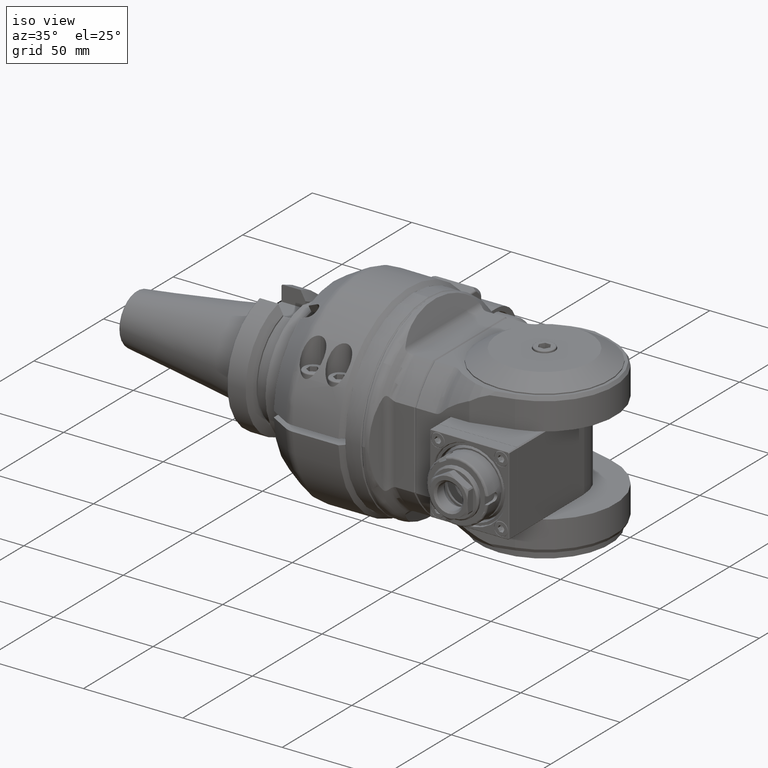
[diagram: clean part render]
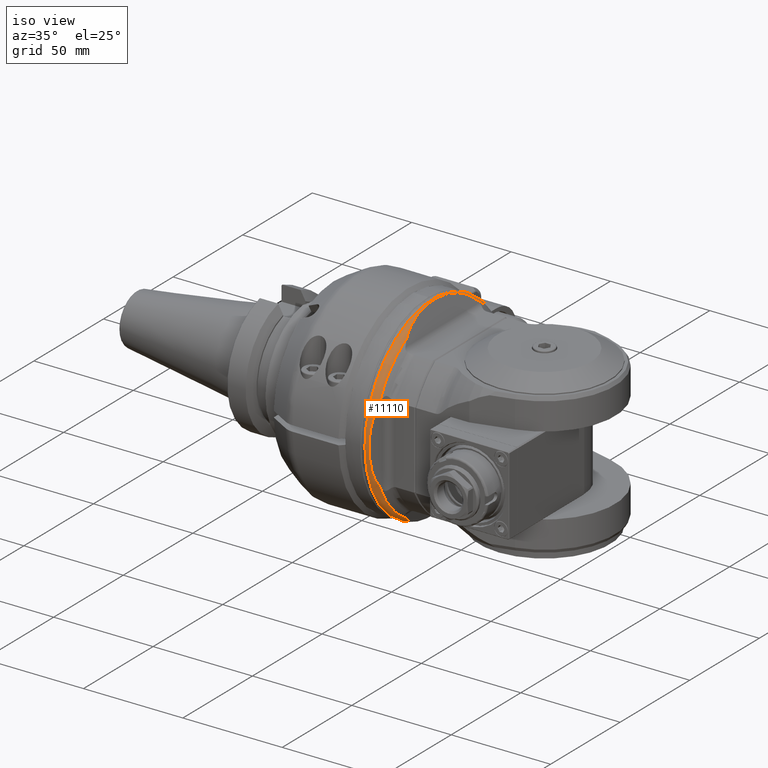
[diagram: same view with one face highlighted and labeled with its STEP entity id]
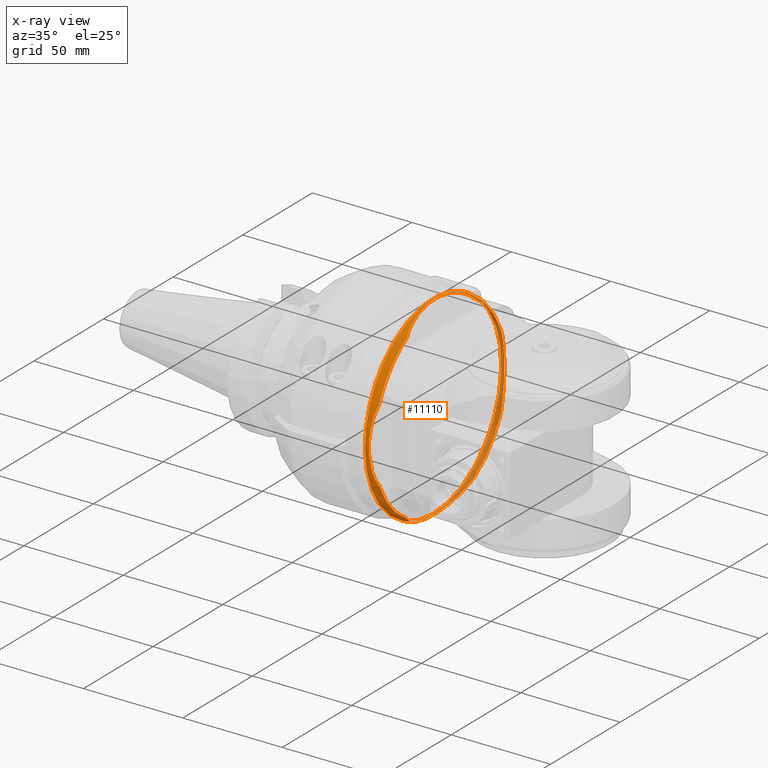
[diagram: x-ray of the same camera — body ghosted, the highlighted face saturated]
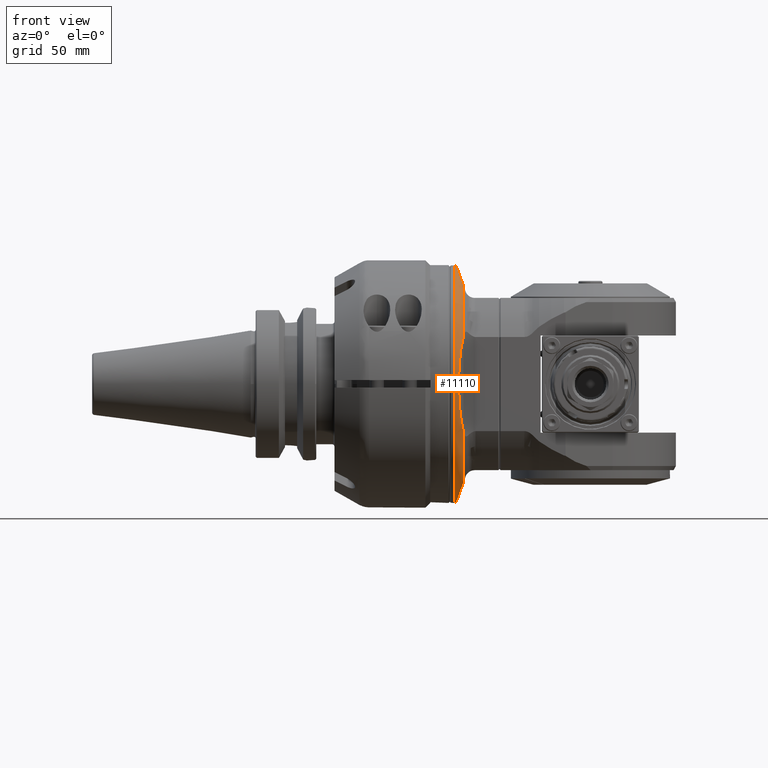
[diagram: same view with one face highlighted and labeled with its STEP entity id]
A machine part, iso view. The second image highlights one B-rep face of the part: STEP entity #11110.
The next image is the same camera in x-ray: the body ghosted, the highlighted face saturated — about 33% of this face is hidden behind the body in this view.
A second angle (front view) of the same face is appended — the face is thin or edge-on in the first view.
In plain terms, the highlighted toroidal blend (fillet) surface has major radius 44 mm and minor (blend) radius 5 mm.
Its self-contained STEP definition (entity closure, byte-faithful):
#236=TOROIDAL_SURFACE('',#11936,44.,5.);
#552=CIRCLE('',#11880,47.53553390593);
#553=CIRCLE('',#11881,47.53553390593);
#572=CIRCLE('',#11933,47.53553390593);
#573=CIRCLE('',#11937,5.);
#574=CIRCLE('',#11938,49.);
#575=CIRCLE('',#11939,49.);
#576=CIRCLE('',#11940,47.53553390593);
#577=CIRCLE('',#11941,47.53553390593);
#1097=FACE_OUTER_BOUND('',#1796,.T.);
#1796=EDGE_LOOP('',(#7753,#7754,#7755,#7756,#7757,#7758,#7759,#7760,#7761,
#7762,#7763,#7764,#7765));
#4108=B_SPLINE_CURVE_WITH_KNOTS('',3,(#17060,#17061,#17062,#17063,#17064,
#17065,#17066,#17067,#17068,#17069,#17070,#17071,#17072,#17073,#17074,#17075,
#17076,#17077,#17078,#17079,#17080,#17081,#17082),.UNSPECIFIED.,.F.,.F.,
(4,2,2,2,2,3,2,2,2,2,4),(-2.43984454532144,-2.00015099254528,-1.74310632766035,
-1.48606166277542,-0.743030831387708,0.,0.743030831387706,1.48606166277541,
1.74310632766034,2.00015099254527,2.43984454532144),.UNSPECIFIED.);
#4109=B_SPLINE_CURVE_WITH_KNOTS('',3,(#17090,#17091,#17092,#17093,#17094,
#17095,#17096,#17097,#17098,#17099,#17100,#17101,#17102,#17103,#17104,#17105,
#17106,#17107,#17108,#17109,#17110,#17111,#17112),.UNSPECIFIED.,.F.,.F.,
(4,2,2,2,2,3,2,2,2,2,4),(6.74242971011523,6.90900004831153,7.11758587013508,
7.32617169195863,7.96213551737785,8.59809934279708,9.2340631682163,9.87002699363553,
10.0786128154591,10.2871986372826,10.4537689754789),.UNSPECIFIED.);
#4110=B_SPLINE_CURVE_WITH_KNOTS('',3,(#17116,#17117,#17118,#17119,#17120,
#17121,#17122,#17123,#17124,#17125,#17126,#17127,#17128,#17129,#17130,#17131,
#17132,#17133,#17134,#17135,#17136,#17137,#17138),.UNSPECIFIED.,.F.,.F.,
(4,2,2,2,2,3,2,2,2,2,4),(8.13167988471684,8.57137343749194,8.82841810237709,
9.08546276726223,9.8284935986504,10.5715244300386,11.3145552614267,12.0575860928149,
12.3146307577001,12.5716754225852,13.0113689753603),.UNSPECIFIED.);
#4111=B_SPLINE_CURVE_WITH_KNOTS('',3,(#17141,#17142,#17143,#17144,#17145,
#17146,#17147,#17148,#17149,#17150,#17151,#17152,#17153,#17154,#17155,#17156,
#17157,#17158,#17159,#17160,#17161,#17162,#17163),.UNSPECIFIED.,.F.,.F.,
(4,2,2,2,2,3,2,2,2,2,4),(6.74242971010642,6.90900004830388,7.1175858701272,
7.32617169195051,7.96213551736924,8.59809934278796,9.23406316820669,9.87002699362542,
10.0786128154487,10.287198637272,10.4537689754695),.UNSPECIFIED.);
#4625=VERTEX_POINT('',#16868);
#4626=VERTEX_POINT('',#16870);
#4627=VERTEX_POINT('',#16872);
#4647=VERTEX_POINT('',#17054);
#4648=VERTEX_POINT('',#17056);
#4649=VERTEX_POINT('',#17084);
#4650=VERTEX_POINT('',#17086);
#4651=VERTEX_POINT('',#17089);
#4652=VERTEX_POINT('',#17113);
#4653=VERTEX_POINT('',#17115);
#4654=VERTEX_POINT('',#17139);
#5803=EDGE_CURVE('',#4626,#4625,#552,.T.);
#5804=EDGE_CURVE('',#4627,#4626,#553,.T.);
#5856=EDGE_CURVE('',#4648,#4647,#572,.T.);
#5858=EDGE_CURVE('',#4648,#4625,#4108,.T.);
#5859=EDGE_CURVE('',#4626,#4649,#573,.T.);
#5860=EDGE_CURVE('',#4649,#4650,#574,.T.);
#5861=EDGE_CURVE('',#4650,#4649,#575,.T.);
#5862=EDGE_CURVE('',#4651,#4647,#4109,.T.);
#5863=EDGE_CURVE('',#4651,#4652,#576,.T.);
#5864=EDGE_CURVE('',#4652,#4653,#4110,.T.);
#5865=EDGE_CURVE('',#4653,#4654,#577,.T.);
#5866=EDGE_CURVE('',#4627,#4654,#4111,.T.);
#7753=ORIENTED_EDGE('',*,*,#5804,.T.);
#7754=ORIENTED_EDGE('',*,*,#5859,.T.);
#7755=ORIENTED_EDGE('',*,*,#5860,.T.);
#7756=ORIENTED_EDGE('',*,*,#5861,.T.);
#7757=ORIENTED_EDGE('',*,*,#5859,.F.);
#7758=ORIENTED_EDGE('',*,*,#5803,.T.);
#7759=ORIENTED_EDGE('',*,*,#5858,.F.);
#7760=ORIENTED_EDGE('',*,*,#5856,.T.);
#7761=ORIENTED_EDGE('',*,*,#5862,.F.);
#7762=ORIENTED_EDGE('',*,*,#5863,.T.);
#7763=ORIENTED_EDGE('',*,*,#5864,.T.);
#7764=ORIENTED_EDGE('',*,*,#5865,.T.);
#7765=ORIENTED_EDGE('',*,*,#5866,.F.);
#11110=ADVANCED_FACE('',(#1097),#236,.T.);
#11880=AXIS2_PLACEMENT_3D('',#16871,#13297,#13298);
#11881=AXIS2_PLACEMENT_3D('',#16873,#13299,#13300);
#11933=AXIS2_PLACEMENT_3D('',#17057,#13417,#13418);
#11936=AXIS2_PLACEMENT_3D('',#17083,#13423,#13424);
#11937=AXIS2_PLACEMENT_3D('',#17085,#13425,#13426);
#11938=AXIS2_PLACEMENT_3D('',#17087,#13427,#13428);
#11939=AXIS2_PLACEMENT_3D('',#17088,#13429,#13430);
#11940=AXIS2_PLACEMENT_3D('',#17114,#13431,#13432);
#11941=AXIS2_PLACEMENT_3D('',#17140,#13433,#13434);
#13297=DIRECTION('center_axis',(-1.,0.,0.));
#13298=DIRECTION('ref_axis',(0.,0.392601429369895,0.919708713483087));
#13299=DIRECTION('center_axis',(-1.,0.,0.));
#13300=DIRECTION('ref_axis',(0.,0.392601429369895,0.919708713483087));
#13417=DIRECTION('center_axis',(-1.,0.,0.));
#13418=DIRECTION('ref_axis',(0.,0.864460332441025,-0.502701038029515));
#13423=DIRECTION('center_axis',(1.,0.,0.));
#13424=DIRECTION('ref_axis',(0.,-0.681998360062485,-0.731353701619183));
#13425=DIRECTION('center_axis',(0.,-0.731353701619184,0.681998360062484));
#13426=DIRECTION('ref_axis',(0.,0.681998360062484,0.731353701619184));
#13427=DIRECTION('center_axis',(1.,0.,0.));
#13428=DIRECTION('ref_axis',(0.,0.681998360062484,0.731353701619183));
#13429=DIRECTION('center_axis',(1.,0.,0.));
#13430=DIRECTION('ref_axis',(0.,0.681998360062484,0.731353701619183));
#13431=DIRECTION('center_axis',(-1.,0.,0.));
#13432=DIRECTION('ref_axis',(0.,-0.392601429369895,-0.919708713483087));
#13433=DIRECTION('center_axis',(-1.,0.,0.));
#13434=DIRECTION('ref_axis',(0.,-0.864460332441025,0.502701038029515));
#16868=CARTESIAN_POINT('',(44.46446609407,41.09258344308,23.8961622378));
#16870=CARTESIAN_POINT('',(44.46446609407,32.4191561685389,34.7652886805461));
#16871=CARTESIAN_POINT('Origin',(44.46446609407,0.,0.));
#16872=CARTESIAN_POINT('',(44.46446609407,18.66251855733,43.71884473336));
#16873=CARTESIAN_POINT('Origin',(44.46446609407,0.,0.));
#17054=CARTESIAN_POINT('',(44.46446609407,18.66251855733,-43.71884473336));
#17056=CARTESIAN_POINT('',(44.46446609407,41.09258344308,-23.8961622378));
#17057=CARTESIAN_POINT('Origin',(44.46446609407,0.,0.));
#17060=CARTESIAN_POINT('Ctrl Pts',(44.4644660940757,41.0925834430739,-23.8961622377918));
#17061=CARTESIAN_POINT('Ctrl Pts',(44.0807184649815,42.1469213887792,-22.8464613976639));
#17062=CARTESIAN_POINT('Ctrl Pts',(43.7262908472899,43.1207032652178,-21.4864127810795));
#17063=CARTESIAN_POINT('Ctrl Pts',(43.2971225944938,44.2998333489219,-19.532112221248));
#17064=CARTESIAN_POINT('Ctrl Pts',(43.1365041596182,44.7411288718907,-18.7160057555082));
#17065=CARTESIAN_POINT('Ctrl Pts',(42.8431706228855,45.5470561404323,-17.0414240138216));
#17066=CARTESIAN_POINT('Ctrl Pts',(42.7102917433149,45.912137861575,-16.1831940298393));
#17067=CARTESIAN_POINT('Ctrl Pts',(42.2776555728236,47.100795970839,-13.0989264161825));
#17068=CARTESIAN_POINT('Ctrl Pts',(42.0161860044596,47.8191777057936,-10.4964622275494));
#17069=CARTESIAN_POINT('Ctrl Pts',(41.6790185905018,48.7455375622186,-5.1853010517597));
#17070=CARTESIAN_POINT('Ctrl Pts',(41.6030160877962,48.9543527222243,-2.47676943795903));
#17071=CARTESIAN_POINT('Ctrl Pts',(41.6030160877962,48.9543527222243,0.));
#17072=CARTESIAN_POINT('Ctrl Pts',(41.6030160877962,48.9543527222243,2.47676943795902));
#17073=CARTESIAN_POINT('Ctrl Pts',(41.6790185905018,48.7455375622186,5.18530105175969));
#17074=CARTESIAN_POINT('Ctrl Pts',(42.0161860044596,47.8191777057936,10.4964622275494));
#17075=CARTESIAN_POINT('Ctrl Pts',(42.2776555728236,47.100795970839,13.0989264161825));
#17076=CARTESIAN_POINT('Ctrl Pts',(42.7102917433149,45.912137861575,16.1831940298393));
#17077=CARTESIAN_POINT('Ctrl Pts',(42.8431706228855,45.5470561404323,17.0414240138216));
#17078=CARTESIAN_POINT('Ctrl Pts',(43.1365041596182,44.7411288718907,18.7160057555082));
#17079=CARTESIAN_POINT('Ctrl Pts',(43.2971225944938,44.2998333489219,19.532112221248));
#17080=CARTESIAN_POINT('Ctrl Pts',(43.7262908472899,43.1207032652178,21.4864127810796));
#17081=CARTESIAN_POINT('Ctrl Pts',(44.0807184649815,42.1469213887792,22.8464613976639));
#17082=CARTESIAN_POINT('Ctrl Pts',(44.4644660940757,41.0925834430739,23.8961622377918));
#17083=CARTESIAN_POINT('Origin',(40.92893218813,0.,0.));
#17084=CARTESIAN_POINT('',(40.92893218813,33.4179196430617,35.83633137934));
#17085=CARTESIAN_POINT('Origin',(40.92893218813,30.0079278427493,32.1795628712441));
#17086=CARTESIAN_POINT('',(40.92893218813,1.06581410364E-14,49.));
#17087=CARTESIAN_POINT('Origin',(40.92893218813,0.,0.));
#17088=CARTESIAN_POINT('Origin',(40.92893218813,0.,0.));
#17089=CARTESIAN_POINT('',(44.46446609407,-18.66251855733,-43.71884473336));
#17090=CARTESIAN_POINT('Ctrl Pts',(44.4644660940687,-18.6625185573252,-43.7188447333527));
#17091=CARTESIAN_POINT('Ctrl Pts',(44.340013542956,-18.1785061137548,-44.0607753073283));
#17092=CARTESIAN_POINT('Ctrl Pts',(44.2266397318306,-17.6765894477361,-44.3722672933529));
#17093=CARTESIAN_POINT('Ctrl Pts',(44.0046423316641,-16.6077112112572,-44.9822001374881));
#17094=CARTESIAN_POINT('Ctrl Pts',(43.8800659119492,-15.9360652240461,-45.3244710376511));
#17095=CARTESIAN_POINT('Ctrl Pts',(43.6527596422682,-14.5613450703855,-45.9489898809001));
#17096=CARTESIAN_POINT('Ctrl Pts',(43.5498832853036,-13.8584780317633,-46.2316403486559));
#17097=CARTESIAN_POINT('Ctrl Pts',(43.2007156987247,-11.2349451896547,-47.190970408387));
#17098=CARTESIAN_POINT('Ctrl Pts',(42.9887134505577,-8.99718388055526,-47.7734417980994));
#17099=CARTESIAN_POINT('Ctrl Pts',(42.7154017782004,-4.43963496242562,-48.5243594463742));
#17100=CARTESIAN_POINT('Ctrl Pts',(42.654029811159,-2.11987941806408,-48.692977540008));
#17101=CARTESIAN_POINT('Ctrl Pts',(42.654029811159,0.,-48.692977540008));
#17102=CARTESIAN_POINT('Ctrl Pts',(42.654029811159,2.11987941806408,-48.692977540008));
#17103=CARTESIAN_POINT('Ctrl Pts',(42.7154017782004,4.43963496242562,-48.5243594463742));
#17104=CARTESIAN_POINT('Ctrl Pts',(42.9887134505577,8.99718388055526,-47.7734417980994));
#17105=CARTESIAN_POINT('Ctrl Pts',(43.2007156987247,11.2349451896547,-47.190970408387));
#17106=CARTESIAN_POINT('Ctrl Pts',(43.5498832853036,13.8584780317633,-46.2316403486559));
#17107=CARTESIAN_POINT('Ctrl Pts',(43.6527596422682,14.5613450703855,-45.9489898809001));
#17108=CARTESIAN_POINT('Ctrl Pts',(43.8800659119492,15.9360652240461,-45.3244710376511));
#17109=CARTESIAN_POINT('Ctrl Pts',(44.0046423316641,16.6077112112572,-44.9822001374881));
#17110=CARTESIAN_POINT('Ctrl Pts',(44.2266397318306,17.6765894477361,-44.3722672933529));
#17111=CARTESIAN_POINT('Ctrl Pts',(44.340013542956,18.1785061137548,-44.0607753073283));
#17112=CARTESIAN_POINT('Ctrl Pts',(44.4644660940687,18.6625185573252,-43.7188447333527));
#17113=CARTESIAN_POINT('',(44.46446609407,-41.09258344308,-23.8961622378));
#17114=CARTESIAN_POINT('Origin',(44.46446609407,0.,0.));
#17115=CARTESIAN_POINT('',(44.46446609407,-41.09258344308,23.8961622378));
#17116=CARTESIAN_POINT('Ctrl Pts',(44.4644660940696,-41.0925834430775,-23.8961622377976));
#17117=CARTESIAN_POINT('Ctrl Pts',(44.0807184649765,-42.1469213887799,-22.8464613976703));
#17118=CARTESIAN_POINT('Ctrl Pts',(43.726290847286,-43.1207032652155,-21.4864127810897));
#17119=CARTESIAN_POINT('Ctrl Pts',(43.2971225944904,-44.2998333489183,-19.5321122212607));
#17120=CARTESIAN_POINT('Ctrl Pts',(43.1365041596146,-44.7411288718876,-18.7160057555203));
#17121=CARTESIAN_POINT('Ctrl Pts',(42.8431706228816,-45.54705614043,-17.0414240138323));
#17122=CARTESIAN_POINT('Ctrl Pts',(42.7102917433109,-45.9121378615731,-16.1831940298494));
#17123=CARTESIAN_POINT('Ctrl Pts',(42.2776555728192,-47.1007959708381,-13.0989264161906));
#17124=CARTESIAN_POINT('Ctrl Pts',(42.016186004455,-47.8191777057933,-10.4964622275559));
#17125=CARTESIAN_POINT('Ctrl Pts',(41.6790185904968,-48.7455375622191,-5.18530105176294));
#17126=CARTESIAN_POINT('Ctrl Pts',(41.6030160877912,-48.9543527222249,-2.47676943796058));
#17127=CARTESIAN_POINT('Ctrl Pts',(41.6030160877912,-48.9543527222249,0.));
#17128=CARTESIAN_POINT('Ctrl Pts',(41.6030160877912,-48.9543527222249,2.47676943796057));
#17129=CARTESIAN_POINT('Ctrl Pts',(41.6790185904969,-48.7455375622191,5.18530105176294));
#17130=CARTESIAN_POINT('Ctrl Pts',(42.016186004455,-47.8191777057933,10.4964622275559));
#17131=CARTESIAN_POINT('Ctrl Pts',(42.2776555728192,-47.1007959708381,13.0989264161906));
#17132=CARTESIAN_POINT('Ctrl Pts',(42.7102917433109,-45.9121378615731,16.1831940298494));
#17133=CARTESIAN_POINT('Ctrl Pts',(42.8431706228816,-45.54705614043,17.0414240138323));
#17134=CARTESIAN_POINT('Ctrl Pts',(43.1365041596146,-44.7411288718876,18.7160057555203));
#17135=CARTESIAN_POINT('Ctrl Pts',(43.2971225944904,-44.2998333489183,19.5321122212607));
#17136=CARTESIAN_POINT('Ctrl Pts',(43.726290847286,-43.1207032652155,21.4864127810897));
#17137=CARTESIAN_POINT('Ctrl Pts',(44.0807184649765,-42.1469213887799,22.8464613976703));
#17138=CARTESIAN_POINT('Ctrl Pts',(44.4644660940696,-41.0925834430775,23.8961622377976));
#17139=CARTESIAN_POINT('',(44.46446609407,-18.66251855733,43.71884473336));
#17140=CARTESIAN_POINT('Origin',(44.46446609407,0.,0.));
#17141=CARTESIAN_POINT('Ctrl Pts',(44.4644660940742,18.6625185573209,43.7188447333486));
#17142=CARTESIAN_POINT('Ctrl Pts',(44.3400135429605,18.1785061137474,44.060775307327));
#17143=CARTESIAN_POINT('Ctrl Pts',(44.2266397318342,17.676589447725,44.3722672933541));
#17144=CARTESIAN_POINT('Ctrl Pts',(44.0046423316671,16.6077112112433,44.9822001374906));
#17145=CARTESIAN_POINT('Ctrl Pts',(43.8800659119524,15.936065224033,45.3244710376532));
#17146=CARTESIAN_POINT('Ctrl Pts',(43.6527596422717,14.5613450703739,45.9489898809014));
#17147=CARTESIAN_POINT('Ctrl Pts',(43.5498832853073,13.8584780317524,46.2316403486568));
#17148=CARTESIAN_POINT('Ctrl Pts',(43.2007156987287,11.2349451896461,47.1909704083869));
#17149=CARTESIAN_POINT('Ctrl Pts',(42.9887134505619,8.99718388054829,47.7734417980987));
#17150=CARTESIAN_POINT('Ctrl Pts',(42.715401778205,4.43963496242216,48.5243594463727));
#17151=CARTESIAN_POINT('Ctrl Pts',(42.6540298111636,2.11987941806242,48.6929775400063));
#17152=CARTESIAN_POINT('Ctrl Pts',(42.6540298111636,0.,48.6929775400063));
#17153=CARTESIAN_POINT('Ctrl Pts',(42.6540298111636,-2.11987941806243,48.6929775400063));
#17154=CARTESIAN_POINT('Ctrl Pts',(42.715401778205,-4.43963496242216,48.5243594463727));
#17155=CARTESIAN_POINT('Ctrl Pts',(42.9887134505619,-8.99718388054829,47.7734417980987));
#17156=CARTESIAN_POINT('Ctrl Pts',(43.2007156987287,-11.2349451896461,47.1909704083869));
#17157=CARTESIAN_POINT('Ctrl Pts',(43.5498832853073,-13.8584780317524,46.2316403486568));
#17158=CARTESIAN_POINT('Ctrl Pts',(43.6527596422717,-14.5613450703739,45.9489898809014));
#17159=CARTESIAN_POINT('Ctrl Pts',(43.8800659119524,-15.936065224033,45.3244710376532));
#17160=CARTESIAN_POINT('Ctrl Pts',(44.0046423316671,-16.6077112112433,44.9822001374906));
#17161=CARTESIAN_POINT('Ctrl Pts',(44.2266397318342,-17.676589447725,44.3722672933541));
#17162=CARTESIAN_POINT('Ctrl Pts',(44.3400135429605,-18.1785061137474,44.060775307327));
#17163=CARTESIAN_POINT('Ctrl Pts',(44.4644660940742,-18.6625185573209,43.7188447333486));